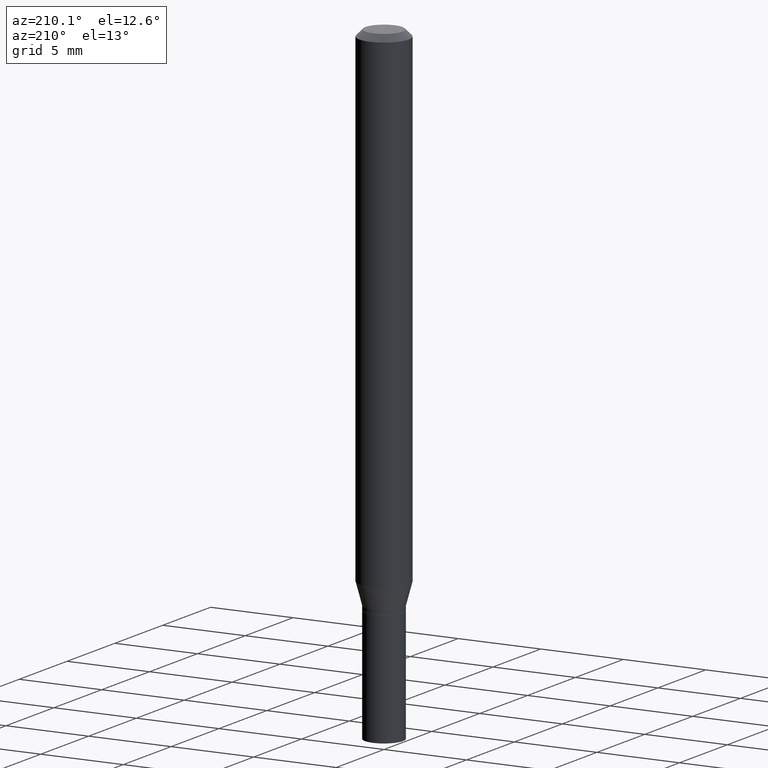
[diagram: clean part render]
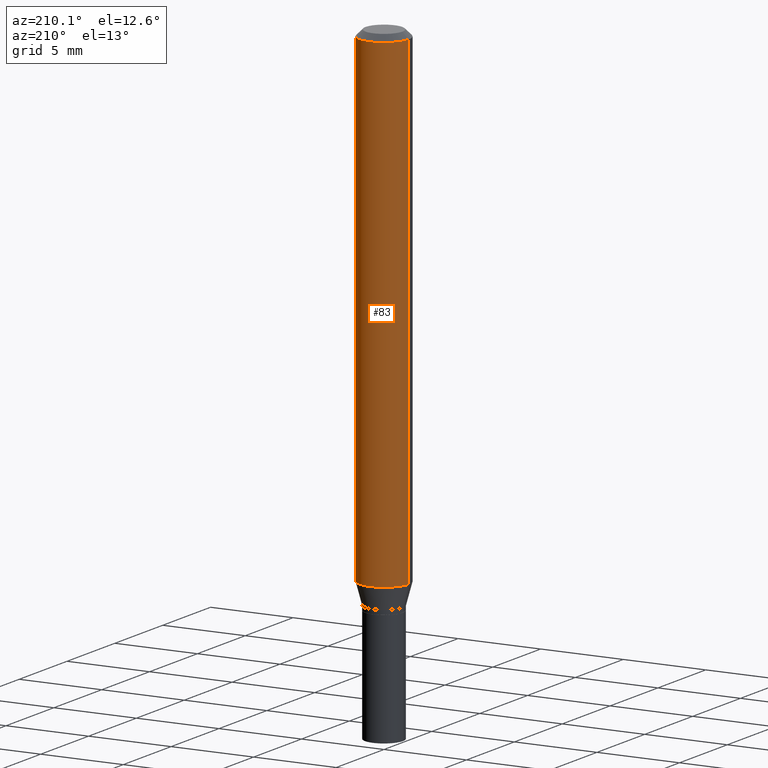
[diagram: same view with one face highlighted and labeled with its STEP entity id]
A machine part, auxiliary view. The second image highlights one B-rep face of the part: STEP entity #83.
In plain terms, the highlighted cylindrical surface (edge-blend (fillet) strip) has radius 1.4999 mm, axis along (-0, 0, 1).
Its self-contained STEP definition (entity closure, byte-faithful):
#13 = LINE ( 'NONE', #405, #400 ) ;
#39 = AXIS2_PLACEMENT_3D ( 'NONE', #247, #210, #284 ) ;
#48 = DIRECTION ( 'NONE',  ( -2.445468806185136597E-29, 3.491481338843145583E-15, 1.000000000000000000 ) ) ;
#63 = EDGE_LOOP ( 'NONE', ( #383, #267, #454, #421 ) ) ;
#69 = CARTESIAN_POINT ( 'NONE',  ( 2.853090065729641044E-29, -4.073456466645135867E-15, -1.166684301395928491 ) ) ;
#79 = VECTOR ( 'NONE', #420, 39.37007874015748143 ) ;
#83 = ADVANCED_FACE ( 'NONE', ( #389 ), #139, .T. ) ;
#95 = CARTESIAN_POINT ( 'NONE',  ( -0.05904999999999999832, -3.653880981178796374E-15, -1.166684301395928491 ) ) ;
#129 = LINE ( 'NONE', #238, #79 ) ;
#130 = VERTEX_POINT ( 'NONE', #95 ) ;
#139 = CYLINDRICAL_SURFACE ( 'NONE', #39, 0.05904999999999999832 ) ;
#150 = DIRECTION ( 'NONE',  ( -2.445468806185136877E-29, 3.491481338843145188E-15, 1.000000000000000000 ) ) ;
#161 = VERTEX_POINT ( 'NONE', #323 ) ;
#174 = EDGE_CURVE ( 'NONE', #161, #130, #219, .T. ) ;
#199 = VERTEX_POINT ( 'NONE', #434 ) ;
#200 = CIRCLE ( 'NONE', #374, 0.05904999999999999832 ) ;
#209 = VERTEX_POINT ( 'NONE', #359 ) ;
#210 = DIRECTION ( 'NONE',  ( -2.445468806185136597E-29, 3.491481338843145583E-15, 1.000000000000000000 ) ) ;
#216 = DIRECTION ( 'NONE',  ( 1.000000000000000000, -6.982962677686265133E-15, 0.000000000000000000 ) ) ;
#219 = CIRCLE ( 'NONE', #360, 0.05904999999999999832 ) ;
#235 = EDGE_CURVE ( 'NONE', #130, #199, #129, .T. ) ;
#238 = CARTESIAN_POINT ( 'NONE',  ( -0.05904999999999999832, 4.195754854663391478E-16, -2.904631170795521892E-30 ) ) ;
#247 = CARTESIAN_POINT ( 'NONE',  ( 0.000000000000000000, 0.000000000000000000, 0.000000000000000000 ) ) ;
#267 = ORIENTED_EDGE ( 'NONE', *, *, #235, .T. ) ;
#278 = DIRECTION ( 'NONE',  ( -2.445468806185136597E-29, 3.491481338843145583E-15, 1.000000000000000000 ) ) ;
#284 = DIRECTION ( 'NONE',  ( 1.000000000000000000, -6.982962677686266711E-15, 4.876176775795936353E-29 ) ) ;
#290 = DIRECTION ( 'NONE',  ( 1.000000000000000000, -6.982962677686266711E-15, 0.000000000000000000 ) ) ;
#313 = EDGE_CURVE ( 'NONE', #161, #209, #13, .T. ) ;
#323 = CARTESIAN_POINT ( 'NONE',  ( 0.05904999999999999832, -4.485800412762509998E-15, -1.166684301395928491 ) ) ;
#359 = CARTESIAN_POINT ( 'NONE',  ( 0.05904999999999999832, -4.647161662000212105E-16, -0.01499999999999999944 ) ) ;
#360 = AXIS2_PLACEMENT_3D ( 'NONE', #69, #278, #216 ) ;
#374 = AXIS2_PLACEMENT_3D ( 'NONE', #436, #48, #290 ) ;
#383 = ORIENTED_EDGE ( 'NONE', *, *, #174, .T. ) ;
#389 = FACE_OUTER_BOUND ( 'NONE', #63, .T. ) ;
#400 = VECTOR ( 'NONE', #150, 39.37007874015748143 ) ;
#405 = CARTESIAN_POINT ( 'NONE',  ( 0.05904999999999999832, -4.123439461173740327E-16, 2.879382386107500220E-30 ) ) ;
#420 = DIRECTION ( 'NONE',  ( -2.445468806185136877E-29, 3.491481338843145188E-15, 1.000000000000000000 ) ) ;
#421 = ORIENTED_EDGE ( 'NONE', *, *, #313, .F. ) ;
#431 = EDGE_CURVE ( 'NONE', #209, #199, #200, .T. ) ;
#434 = CARTESIAN_POINT ( 'NONE',  ( -0.05904999999999999832, -1.643338857897552572E-15, -0.01499999999999999944 ) ) ;
#436 = CARTESIAN_POINT ( 'NONE',  ( 3.668203209277705088E-31, -5.237222008264718399E-17, -0.01499999999999999944 ) ) ;
#454 = ORIENTED_EDGE ( 'NONE', *, *, #431, .F. ) ;